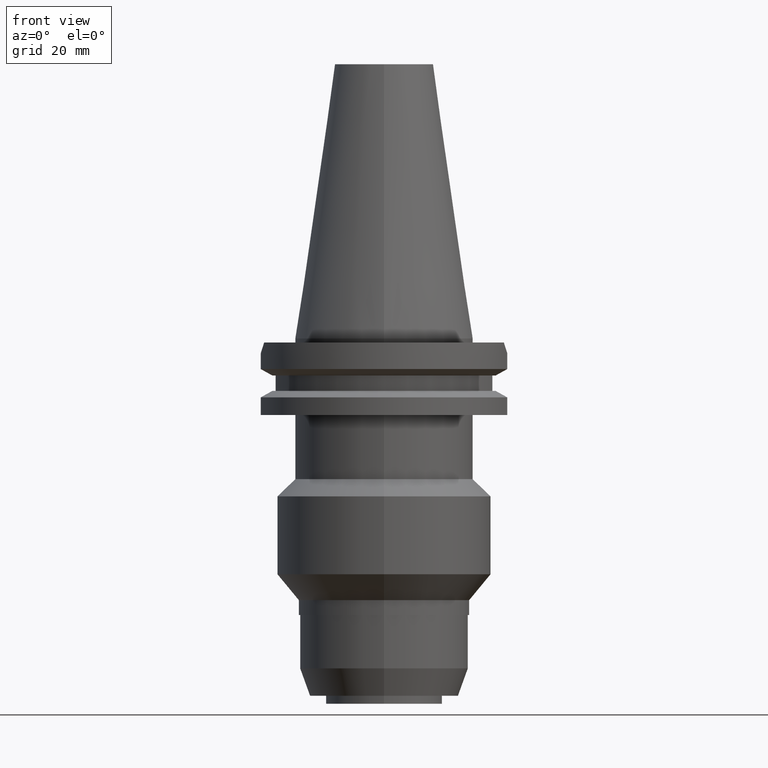
[diagram: clean part render]
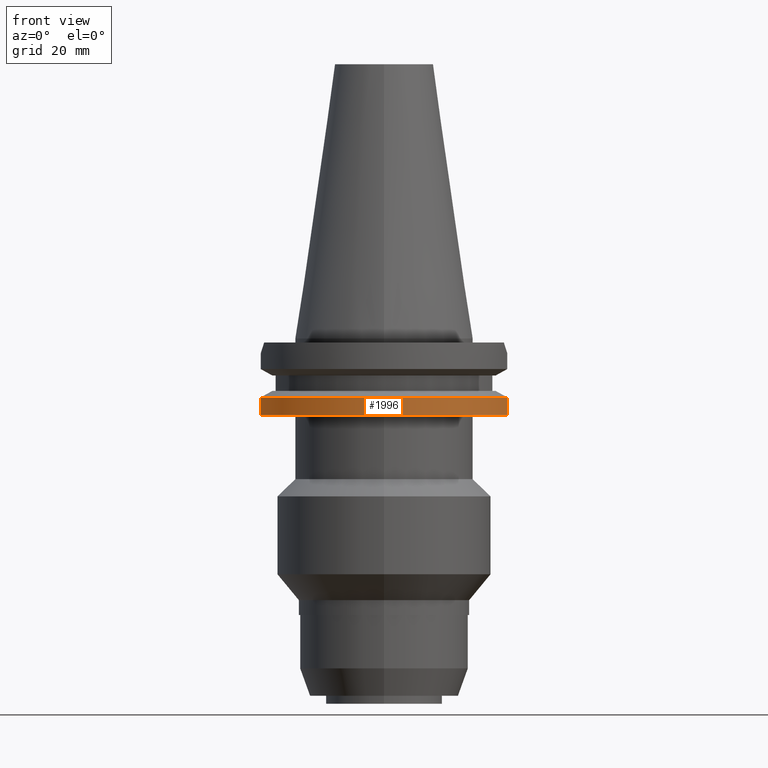
[diagram: same view with one face highlighted and labeled with its STEP entity id]
A machine part, front view. The second image highlights one B-rep face of the part: STEP entity #1996.
In plain terms, the highlighted cylindrical surface (partial cylindrical patch) has radius 31.75 mm, axis along (0, 0, -1).
Its self-contained STEP definition (entity closure, byte-faithful):
#235=CARTESIAN_POINT('',(0.E0,2.157919508608E-14,-1.905E1));
#236=DIRECTION('',(0.E0,0.E0,1.E0));
#237=DIRECTION('',(-9.661575315241E-1,-2.579527559055E-1,0.E0));
#238=AXIS2_PLACEMENT_3D('',#235,#236,#237);
#243=CARTESIAN_POINT('',(0.E0,2.157919508608E-14,-1.905E1));
#244=DIRECTION('',(0.E0,0.E0,1.E0));
#245=DIRECTION('',(0.E0,-1.E0,0.E0));
#246=AXIS2_PLACEMENT_3D('',#243,#244,#245);
#636=DIRECTION('',(3.682832691786E-8,1.379404083650E-7,-1.E0));
#637=VECTOR('',#636,4.396327811741E0);
#638=CARTESIAN_POINT('',(3.067550146398E1,-8.190000606431E0,-1.465367218826E1));
#639=LINE('',#638,#637);
#643=DIRECTION('',(-7.636807196165E-9,2.860296781905E-8,1.E0));
#644=VECTOR('',#643,4.396334354618E0);
#645=CARTESIAN_POINT('',(-3.067550162589E1,-8.19E0,-1.905E1));
#646=LINE('',#645,#644);
#792=CARTESIAN_POINT('',(0.E0,1.055026073065E-14,-1.465366676908E1));
#793=DIRECTION('',(0.E0,0.E0,-1.E0));
#794=DIRECTION('',(9.661575315241E-1,-2.579527559055E-1,0.E0));
#795=AXIS2_PLACEMENT_3D('',#792,#793,#794);
#800=CARTESIAN_POINT('',(0.E0,1.055026073065E-14,-1.465366676908E1));
#801=DIRECTION('',(0.E0,0.E0,-1.E0));
#802=DIRECTION('',(0.E0,-1.E0,0.E0));
#803=AXIS2_PLACEMENT_3D('',#800,#801,#802);
#1416=CARTESIAN_POINT('',(-3.067550162589E1,-8.19E0,-1.905E1));
#1417=VERTEX_POINT('',#1416);
#1418=CARTESIAN_POINT('',(1.540277123354E-14,-3.175E1,-1.905E1));
#1419=CARTESIAN_POINT('',(3.067550162589E1,-8.19E0,-1.905E1));
#1420=VERTEX_POINT('',#1418);
#1421=VERTEX_POINT('',#1419);
#1430=CARTESIAN_POINT('',(3.067550146398E1,-8.190000606431E0,
-1.465367218826E1));
#1431=VERTEX_POINT('',#1430);
#1442=CARTESIAN_POINT('',(-3.067550165946E1,-8.189999874252E0,
-1.465366564538E1));
#1443=VERTEX_POINT('',#1442);
#1444=CARTESIAN_POINT('',(0.E0,-3.175E1,-1.465366676908E1));
#1445=VERTEX_POINT('',#1444);
#1980=CARTESIAN_POINT('',(0.E0,2.157919508608E-14,7.62075E1));
#1981=DIRECTION('',(0.E0,0.E0,-1.E0));
#1982=DIRECTION('',(0.E0,-1.E0,0.E0));
#1983=AXIS2_PLACEMENT_3D('',#1980,#1981,#1982);
#1984=CYLINDRICAL_SURFACE('',#1983,3.175E1);
#1985=ORIENTED_EDGE('',*,*,#1962,.T.);
#1986=ORIENTED_EDGE('',*,*,#1681,.F.);
#1987=ORIENTED_EDGE('',*,*,#1679,.F.);
#1989=ORIENTED_EDGE('',*,*,#1988,.T.);
#1991=ORIENTED_EDGE('',*,*,#1990,.F.);
#1993=ORIENTED_EDGE('',*,*,#1992,.F.);
#1994=EDGE_LOOP('',(#1985,#1986,#1987,#1989,#1991,#1993));
#1995=FACE_OUTER_BOUND('',#1994,.F.);
#239=CIRCLE('',#238,3.175E1);
#247=CIRCLE('',#246,3.175E1);
#796=CIRCLE('',#795,3.175E1);
#804=CIRCLE('',#803,3.175E1);
#1679=EDGE_CURVE('',#1417,#1420,#239,.T.);
#1681=EDGE_CURVE('',#1420,#1421,#247,.T.);
#1962=EDGE_CURVE('',#1431,#1421,#639,.T.);
#1988=EDGE_CURVE('',#1417,#1443,#646,.T.);
#1990=EDGE_CURVE('',#1445,#1443,#804,.T.);
#1992=EDGE_CURVE('',#1431,#1445,#796,.T.);
#1996=ADVANCED_FACE('',(#1995),#1984,.T.);